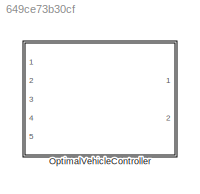
MODEL slx_649ce73b30cf
KIND library
CONFIG AbsTol = auto
CONFIG EnableMultiTasking = off
CONFIG FixedStep = auto
CONFIG MaxStep = auto
CONFIG MinStep = auto
CONFIG RelTol = 1e-3
CONFIG SampleTimeConstraint = Unconstrained
CONFIG Solver = VariableStepAuto
CONFIG SolverName = VariableStepAuto
CONFIG StartTime = 0.0
CONFIG StopTime = 10.0
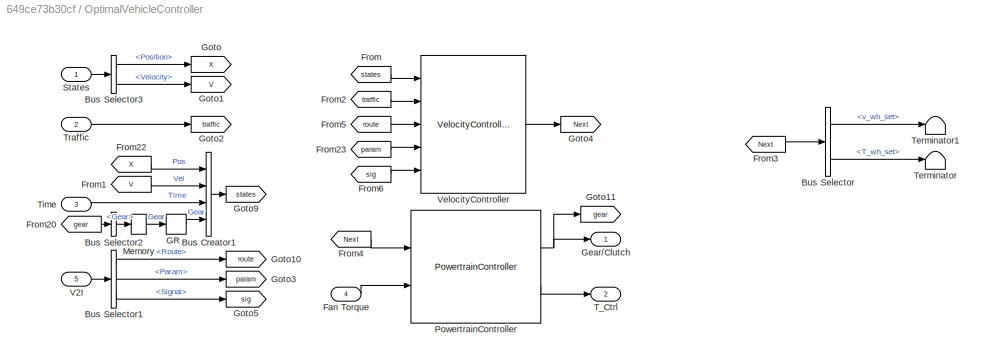
BLOCK [SubSystem] OptimalVehicleController
  Ports = [5, 2]
  RequestExecContextInheritance = off
  VariantControl = strcmpi(VEHICLECONTROLLER,'Optimal')
BLOCK [BusCreator] OptimalVehicleController/Bus Creator1
  DisplayOption = bar
  InheritFromInputs = on
  Inputs = 4
  Ports = [4, 1]
BLOCK [BusSelector] OptimalVehicleController/Bus Selector
  OutputSignals = v_wh_set,T_wh_set
  Ports = [1, 2]
BLOCK [BusSelector] OptimalVehicleController/Bus Selector1
  OutputSignals = Route,Param,Signal
  Ports = [1, 3]
BLOCK [BusSelector] OptimalVehicleController/Bus Selector2
  OutputSignals = Gear
  Ports = [1, 1]
BLOCK [BusSelector] OptimalVehicleController/Bus Selector3
  OutputSignals = Position,Velocity
  Ports = [1, 2]
BLOCK [Inport] OptimalVehicleController/Fan Torque
  Port = 4
BLOCK [From] OptimalVehicleController/From
  GotoTag = states
BLOCK [From] OptimalVehicleController/From1
  GotoTag = V
BLOCK [From] OptimalVehicleController/From2
  GotoTag = traffic
BLOCK [From] OptimalVehicleController/From20
  GotoTag = gear
BLOCK [From] OptimalVehicleController/From22
  GotoTag = X
BLOCK [From] OptimalVehicleController/From23
  GotoTag = param
BLOCK [From] OptimalVehicleController/From3
  GotoTag = Next
BLOCK [From] OptimalVehicleController/From4
  GotoTag = Next
BLOCK [From] OptimalVehicleController/From5
  GotoTag = route
BLOCK [From] OptimalVehicleController/From6
  GotoTag = sig
BLOCK [Lookup_n-D] OptimalVehicleController/GR
  BreakpointsForDimension1 = [1:TRAN.numGears]
  ExtrapMethod = Clip
  InternalRulePriority = Speed
  NumberOfTableDimensions = 1
  Ports = [1, 1]
  RndMeth = Simplest
  Table = TRAN.gears
  UseLastTableValue = on
BLOCK [Outport] OptimalVehicleController/Gear//Clutch
  VectorParamsAs1DForOutWhenUnconnected = off
BLOCK [Goto] OptimalVehicleController/Goto
  GotoTag = X
BLOCK [Goto] OptimalVehicleController/Goto1
  GotoTag = V
BLOCK [Goto] OptimalVehicleController/Goto10
  GotoTag = route
BLOCK [Goto] OptimalVehicleController/Goto11
  GotoTag = gear
BLOCK [Goto] OptimalVehicleController/Goto2
  GotoTag = traffic
BLOCK [Goto] OptimalVehicleController/Goto3
  GotoTag = param
BLOCK [Goto] OptimalVehicleController/Goto4
  GotoTag = Next
BLOCK [Goto] OptimalVehicleController/Goto5
  GotoTag = sig
BLOCK [Goto] OptimalVehicleController/Goto9
  GotoTag = states
BLOCK [Memory] OptimalVehicleController/Memory
  InitialCondition = 11
BLOCK [Reference] OptimalVehicleController/PowertrainController  REF=PowertrainController_ul/PowertrainController
  Ports = [2, 2]
  SourceBlock = PowertrainController_ul/PowertrainController
  SourceType = SubSystem
BLOCK [Inport] OptimalVehicleController/States
BLOCK [Outport] OptimalVehicleController/T_Ctrl
  Port = 2
  VectorParamsAs1DForOutWhenUnconnected = off
BLOCK [Terminator] OptimalVehicleController/Terminator
BLOCK [Terminator] OptimalVehicleController/Terminator1
BLOCK [Inport] OptimalVehicleController/Time
  NameLocation = top
  Port = 3
BLOCK [Inport] OptimalVehicleController/Traffic
  Port = 2
BLOCK [Inport] OptimalVehicleController/V2I
  Port = 5
BLOCK [Reference] OptimalVehicleController/VelocityController  REF=VelocityController_CL/VelocityController
  Ports = [5, 1]
  SourceBlock = VelocityController_CL/VelocityController
  SourceType = SubSystem
LINE OptimalVehicleController/Bus Creator1:1 -> OptimalVehicleController/Goto9:1
LINE OptimalVehicleController/Bus Selector1:1 -> OptimalVehicleController/Goto10:1
LINE OptimalVehicleController/Bus Selector1:2 -> OptimalVehicleController/Goto3:1
LINE OptimalVehicleController/Bus Selector1:3 -> OptimalVehicleController/Goto5:1
LINE OptimalVehicleController/Bus Selector2:1 -> OptimalVehicleController/Memory:1
LINE OptimalVehicleController/Bus Selector3:1 -> OptimalVehicleController/Goto:1
LINE OptimalVehicleController/Bus Selector3:2 -> OptimalVehicleController/Goto1:1
LINE OptimalVehicleController/Bus Selector:1 -> OptimalVehicleController/Terminator1:1
LINE OptimalVehicleController/Bus Selector:2 -> OptimalVehicleController/Terminator:1
LINE OptimalVehicleController/Fan Torque:1 -> OptimalVehicleController/PowertrainController:2
LINE OptimalVehicleController/From1:1 -> OptimalVehicleController/Bus Creator1:2
LINE OptimalVehicleController/From20:1 -> OptimalVehicleController/Bus Selector2:1
LINE OptimalVehicleController/From22:1 -> OptimalVehicleController/Bus Creator1:1
LINE OptimalVehicleController/From23:1 -> OptimalVehicleController/VelocityController:4
LINE OptimalVehicleController/From2:1 -> OptimalVehicleController/VelocityController:2
LINE OptimalVehicleController/From3:1 -> OptimalVehicleController/Bus Selector:1
LINE OptimalVehicleController/From4:1 -> OptimalVehicleController/PowertrainController:1
LINE OptimalVehicleController/From5:1 -> OptimalVehicleController/VelocityController:3
LINE OptimalVehicleController/From6:1 -> OptimalVehicleController/VelocityController:5
LINE OptimalVehicleController/From:1 -> OptimalVehicleController/VelocityController:1
LINE OptimalVehicleController/GR:1 -> OptimalVehicleController/Bus Creator1:4
LINE OptimalVehicleController/Memory:1 -> OptimalVehicleController/GR:1
NET OptimalVehicleController/PowertrainController:1 -> OptimalVehicleController/Gear//Clutch:1, OptimalVehicleController/Goto11:1
LINE OptimalVehicleController/PowertrainController:2 -> OptimalVehicleController/T_Ctrl:1
LINE OptimalVehicleController/States:1 -> OptimalVehicleController/Bus Selector3:1
LINE OptimalVehicleController/Time:1 -> OptimalVehicleController/Bus Creator1:3
LINE OptimalVehicleController/Traffic:1 -> OptimalVehicleController/Goto2:1
LINE OptimalVehicleController/V2I:1 -> OptimalVehicleController/Bus Selector1:1
LINE OptimalVehicleController/VelocityController:1 -> OptimalVehicleController/Goto4:1
note: NET lines group one-source signal fan-out (src -> all destinations, sorted); 1:1 wires keep LINE
